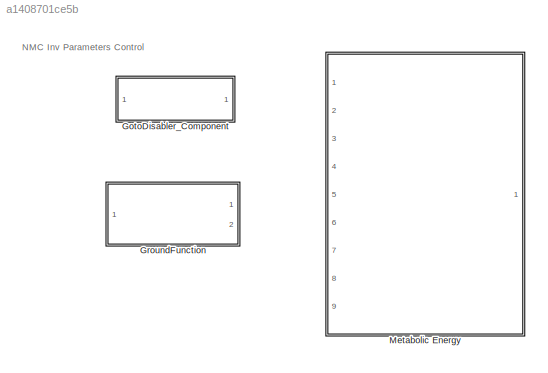
MODEL slx_a1408701ce5b
KIND library
CONFIG AbsTol = auto
CONFIG EnableMultiTasking = off
CONFIG FixedStep = auto
CONFIG MaxStep = auto
CONFIG MinStep = auto
CONFIG RelTol = 1e-3
CONFIG SampleTimeConstraint = Unconstrained
CONFIG Solver = ode45
CONFIG SolverName = ode45
CONFIG StartTime = 0.0
CONFIG StopTime = 10.0
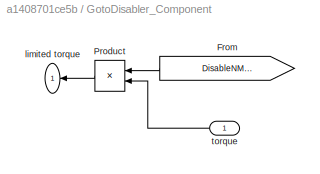
BLOCK [SubSystem] GotoDisabler_Component
  Ports = [1, 1]
  RequestExecContextInheritance = off
  ShowPortLabels = none
  Variant = off
BLOCK [From] GotoDisabler_Component/From
  GotoTag = DisableNMC_Component
BLOCK [Product] GotoDisabler_Component/Product
  InputSameDT = off
  OutDataTypeStr = Inherit: Inherit via internal rule
  Ports = [2, 1]
  RndMeth = Floor
  SaturateOnIntegerOverflow = off
BLOCK [Outport] GotoDisabler_Component/limited torque
  IconDisplay = Port number
BLOCK [Inport] GotoDisabler_Component/torque
  IconDisplay = Port number
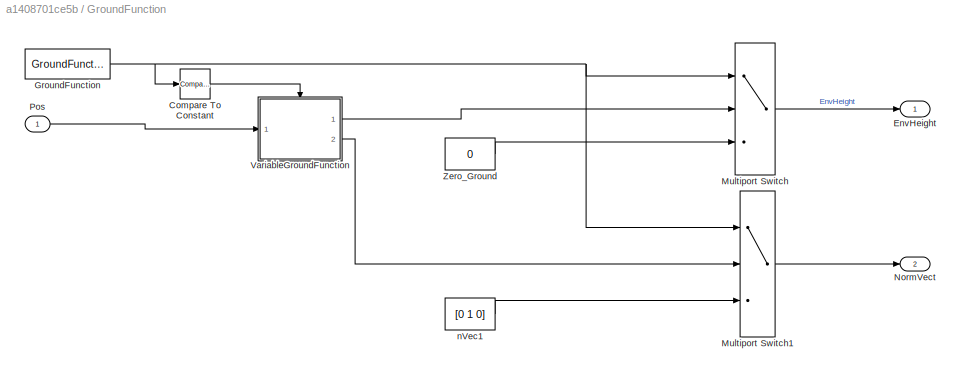
BLOCK [SubSystem] GroundFunction
  Ports = [1, 2]
  RequestExecContextInheritance = off
  Variant = off
BLOCK [Reference] GroundFunction/Compare To Constant  REF=simulink/Logic and Bit
Operations/Compare
To Constant
  Ports = [1, 1]
  SourceBlock = simulink/Logic and Bit\nOperations/Compare\nTo Constant
  SourceProductBaseCode = SL
  SourceProductName = Simulink
  SourceType = Compare To Constant
BLOCK [Outport] GroundFunction/EnvHeight
  IconDisplay = Port number
BLOCK [Constant] GroundFunction/GroundFunction
  Value = GroundFunction
BLOCK [MultiPortSwitch] GroundFunction/Multiport Switch
  InputSameDT = off
  Inputs = 2
  Ports = [3, 1]
  SaturateOnIntegerOverflow = off
BLOCK [MultiPortSwitch] GroundFunction/Multiport Switch1
  InputSameDT = off
  Inputs = 2
  Ports = [3, 1]
  SaturateOnIntegerOverflow = off
BLOCK [Outport] GroundFunction/NormVect
  IconDisplay = Port number
  Port = 2
BLOCK [Inport] GroundFunction/Pos
  IconDisplay = Port number
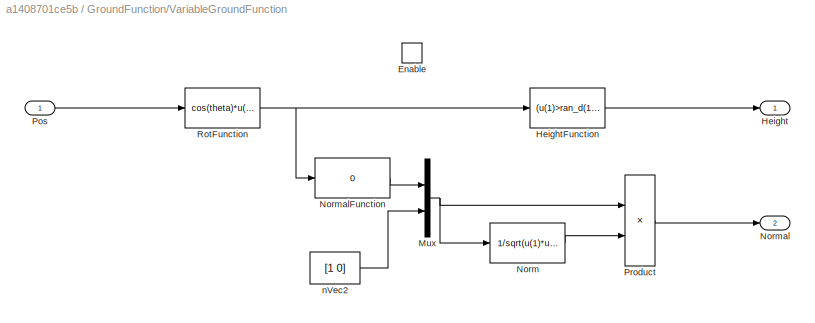
BLOCK [SubSystem] GroundFunction/VariableGroundFunction
  Ports = [1, 2, 1]
  RequestExecContextInheritance = off
  Variant = off
BLOCK [EnablePort] GroundFunction/VariableGroundFunction/Enable
  Ports = []
  ZeroCross = off
BLOCK [Outport] GroundFunction/VariableGroundFunction/Height
  IconDisplay = Port number
BLOCK [Fcn] GroundFunction/VariableGroundFunction/HeightFunction
  Expr = (u(1)>ran_d(1))*ran_h(1)+(u(1)>ran_d(2))*ran_h(2)+(u(1)>ran_d(3))*ran_h(3)+(u(1)>ran_d(4))*ran_h(4)+(u(1)>ran_d(5))*ran_h(5)+(u(1)>ran_d(6))*ran_h(6)+(u(1)>ran_d(7))*ran_h(7)+(u(1)>ran_d(8))*ran_h(8)+(u(1)>ran_d(9))*ran_h(9)+(u(1)>ran_d(10))*ran_h(10)
BLOCK [Mux] GroundFunction/VariableGroundFunction/Mux
  DisplayOption = bar
  Inputs = 2
  Ports = [2, 1]
BLOCK [Fcn] GroundFunction/VariableGroundFunction/Norm
  Expr = 1/sqrt(u(1)*u(1) + u(2)*u(2) + u(3)*u(3))
BLOCK [Outport] GroundFunction/VariableGroundFunction/Normal
  IconDisplay = Port number
  Port = 2
BLOCK [Fcn] GroundFunction/VariableGroundFunction/NormalFunction
  Expr = 0
BLOCK [Inport] GroundFunction/VariableGroundFunction/Pos
  IconDisplay = Port number
BLOCK [Product] GroundFunction/VariableGroundFunction/Product
  InputSameDT = off
  OutDataTypeStr = Inherit: Inherit via internal rule
  Ports = [2, 1]
  RndMeth = Floor
  SaturateOnIntegerOverflow = off
BLOCK [Fcn] GroundFunction/VariableGroundFunction/RotFunction
  Expr = cos(theta)*u(1)-sin(theta)*u(3)
BLOCK [Constant] GroundFunction/VariableGroundFunction/nVec2
  Value = [1 0]
BLOCK [Constant] GroundFunction/Zero_Ground
  Value = 0
BLOCK [Constant] GroundFunction/nVec1
  Value = [0 1 0]
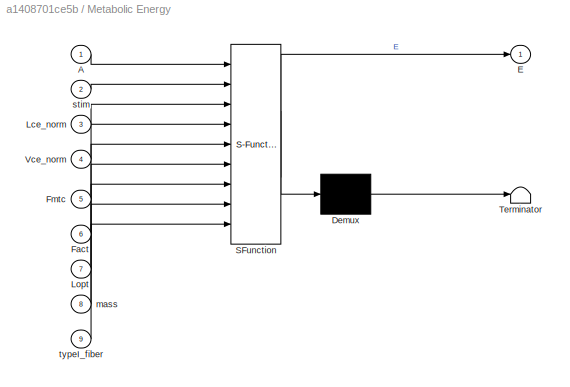
BLOCK [SubSystem] Metabolic Energy
  ErrorFcn = Stateflow.Translate.translate
  PermitHierarchicalResolution = ExplicitOnly
  Ports = [9, 1]
  RequestExecContextInheritance = off
  SFBlockType = MATLAB Function
  TreatAsAtomicUnit = on
  Variant = off
BLOCK [Demux] Metabolic Energy/ Demux 
  Outputs = 1
  Ports = [1, 1]
BLOCK [S-Function] Metabolic Energy/ SFunction 
  EnableBusSupport = off
  FunctionName = sf_sfun
  PortCounts = [9 2]
  Ports = [9, 2]
  SFcnIsStateOwnerBlock = off
  SFunctionDeploymentMode = off
  Tag = Stateflow S-Function nmc 15
BLOCK [Terminator] Metabolic Energy/ Terminator 
BLOCK [Inport] Metabolic Energy/A
  IconDisplay = Port number
BLOCK [Outport] Metabolic Energy/E
  IconDisplay = Port number
BLOCK [Inport] Metabolic Energy/Fact
  IconDisplay = Port number
  Port = 6
BLOCK [Inport] Metabolic Energy/Fmtc
  IconDisplay = Port number
  Port = 5
BLOCK [Inport] Metabolic Energy/Lce_norm
  IconDisplay = Port number
  Port = 3
BLOCK [Inport] Metabolic Energy/Lopt
  IconDisplay = Port number
  Port = 7
BLOCK [Inport] Metabolic Energy/Vce_norm
  IconDisplay = Port number
  Port = 4
BLOCK [Inport] Metabolic Energy/mass
  IconDisplay = Port number
  Port = 8
BLOCK [Inport] Metabolic Energy/stim
  IconDisplay = Port number
  Port = 2
BLOCK [Inport] Metabolic Energy/typeI_fiber
  IconDisplay = Port number
  Port = 9
ANNOTATION (root): NMC Inv Parameters Control
LINE GotoDisabler_Component/From:1 -> GotoDisabler_Component/Product:1
LINE GotoDisabler_Component/Product:1 -> GotoDisabler_Component/limited torque:1
LINE GotoDisabler_Component/torque:1 -> GotoDisabler_Component/Product:2
LINE GroundFunction/Compare To Constant:1 -> GroundFunction/VariableGroundFunction:enable
NET GroundFunction/GroundFunction:1 -> GroundFunction/Compare To Constant:1, GroundFunction/Multiport Switch1:1, GroundFunction/Multiport Switch:1
LINE GroundFunction/Multiport Switch1:1 -> GroundFunction/NormVect:1
LINE GroundFunction/Multiport Switch:1 -> GroundFunction/EnvHeight:1
LINE GroundFunction/Pos:1 -> GroundFunction/VariableGroundFunction:1
LINE GroundFunction/VariableGroundFunction/HeightFunction:1 -> GroundFunction/VariableGroundFunction/Height:1
NET GroundFunction/VariableGroundFunction/Mux:1 -> GroundFunction/VariableGroundFunction/Norm:1, GroundFunction/VariableGroundFunction/Product:1
LINE GroundFunction/VariableGroundFunction/Norm:1 -> GroundFunction/VariableGroundFunction/Product:2
LINE GroundFunction/VariableGroundFunction/NormalFunction:1 -> GroundFunction/VariableGroundFunction/Mux:1
LINE GroundFunction/VariableGroundFunction/Pos:1 -> GroundFunction/VariableGroundFunction/RotFunction:1
LINE GroundFunction/VariableGroundFunction/Product:1 -> GroundFunction/VariableGroundFunction/Normal:1
NET GroundFunction/VariableGroundFunction/RotFunction:1 -> GroundFunction/VariableGroundFunction/HeightFunction:1, GroundFunction/VariableGroundFunction/NormalFunction:1
LINE GroundFunction/VariableGroundFunction/nVec2:1 -> GroundFunction/VariableGroundFunction/Mux:2
LINE GroundFunction/VariableGroundFunction:1 -> GroundFunction/Multiport Switch:2
LINE GroundFunction/VariableGroundFunction:2 -> GroundFunction/Multiport Switch1:2
LINE GroundFunction/Zero_Ground:1 -> GroundFunction/Multiport Switch:3
LINE GroundFunction/nVec1:1 -> GroundFunction/Multiport Switch1:3
note: NET lines group one-source signal fan-out (src -> all destinations, sorted); 1:1 wires keep LINE
CHART Metabolic Energy states=1 transitions=1
  STATE_LABEL 'eML_blk_kernel()'
  STATE_LABEL 'SCRIPT:\nfunction E = MetaEnergy(A,stim,Lce_norm,Vce_norm,Fmtc,Fact,Lopt,mass,typeI_fiber)\n%% Getting g\nl = Lce_norm;\nVce = Vce_norm*Lopt;\n\ng=zeros(length(l),1);\n\nfor i_l = 1:length(l)\n    if l(i_l) >= 0 && l(i_l)  <= 0.5\n        g(i_l) = 0.5;\n    elseif l(i_l) > 0.5 && l(i_l) <= 1.0\n        g(i_l) =  l(i_l) ;\n    elseif(l(i_l) > 1.0 && l(i_l) <= 1.5)\n        g(i_l) = -2*l(i_l) +3;\n    else\n       ...<+443ch>'
